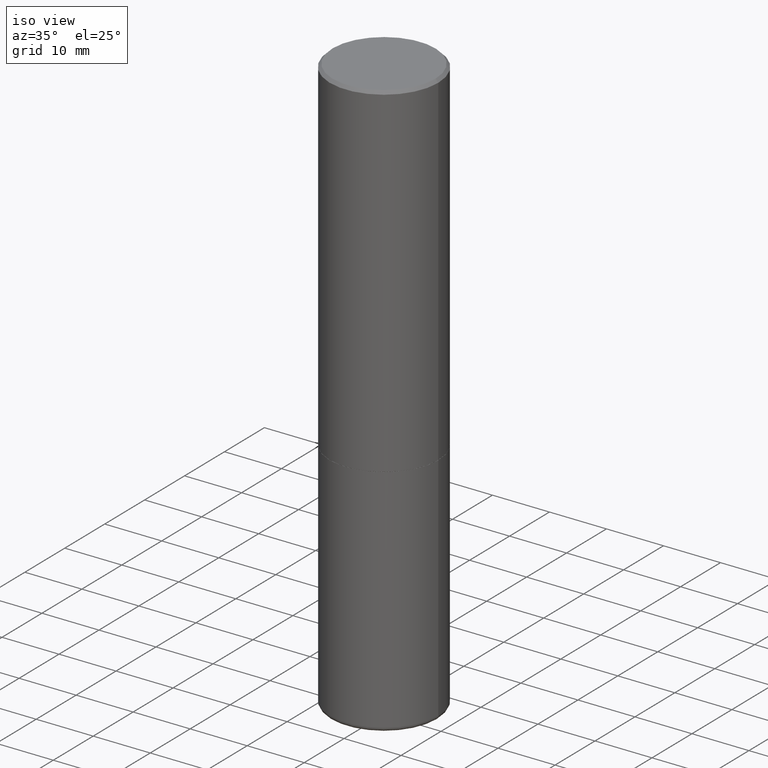
[diagram: clean part render]
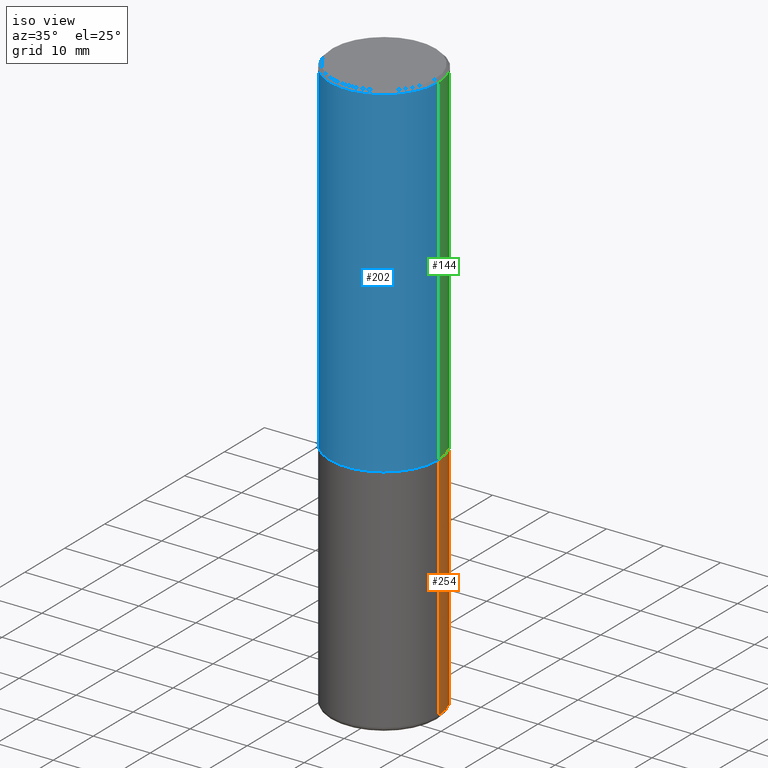
[diagram: same view with three faces highlighted in distinct colors, each labeled with its STEP entity id]
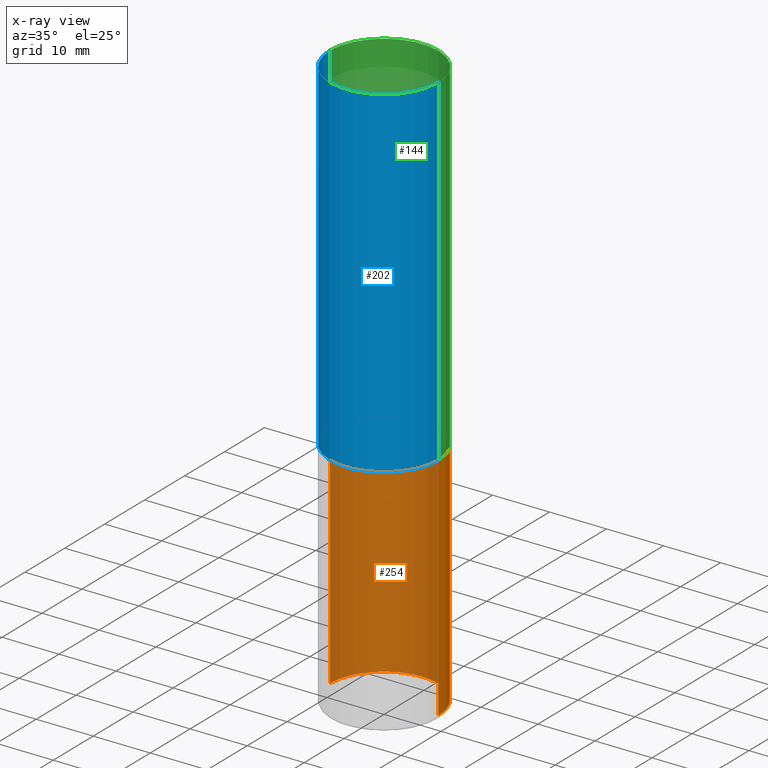
[diagram: x-ray of the same camera — body ghosted, the three highlighted faces saturated]
A machine part, iso view with three faces highlighted in distinct colors.
The next image is the same camera in x-ray (body ghosted, the three faces saturated) — at least one of them is partly hidden behind the body in this view.
Their STEP definitions:

[orange] entity #254 — the highlighted cylindrical surface (partial cylindrical patch) has radius 9.525 mm, axis along (-0, 0, 1).
#13 = EDGE_CURVE ( 'NONE', #386, #225, #66, .T. ) ;
#57 = ORIENTED_EDGE ( 'NONE', *, *, #13, .T. ) ;
#60 = AXIS2_PLACEMENT_3D ( 'NONE', #87, #275, #387 ) ;
#61 = CARTESIAN_POINT ( 'NONE',  ( 0.3749999999999993894, -2.618611004132345678E-15, 1.828566290923473120E-29 ) ) ;
#66 = CIRCLE ( 'NONE', #359, 0.3749999999999993339 ) ;
#68 = CARTESIAN_POINT ( 'NONE',  ( 0.3749999999999995559, -1.091087918388481698E-14, -2.375000000000000000 ) ) ;
#87 = CARTESIAN_POINT ( 'NONE',  ( 5.807988414689699417E-29, -8.292268179752470118E-15, -2.375000000000000000 ) ) ;
#93 = AXIS2_PLACEMENT_3D ( 'NONE', #214, #98, #139 ) ;
#94 = CIRCLE ( 'NONE', #60, 0.3749999999999995559 ) ;
#98 = DIRECTION ( 'NONE',  ( -2.445468806185136597E-29, 3.491481338843145583E-15, 1.000000000000000000 ) ) ;
#100 = VECTOR ( 'NONE', #290, 39.37007874015748143 ) ;
#104 = EDGE_CURVE ( 'NONE', #386, #155, #395, .T. ) ;
#129 = DIRECTION ( 'NONE',  ( -2.445468806185136597E-29, 3.491481338843145583E-15, 1.000000000000000000 ) ) ;
#139 = DIRECTION ( 'NONE',  ( 1.000000000000000000, -6.982962677686266711E-15, 4.876176775795936353E-29 ) ) ;
#145 = CARTESIAN_POINT ( 'NONE',  ( 0.3749999999999993339, -1.647979590768696204E-14, -3.970001142308074993 ) ) ;
#155 = VERTEX_POINT ( 'NONE', #68 ) ;
#166 = VECTOR ( 'NONE', #201, 39.37007874015748143 ) ;
#175 = FACE_OUTER_BOUND ( 'NONE', #193, .T. ) ;
#193 = EDGE_LOOP ( 'NONE', ( #57, #263, #422, #264 ) ) ;
#199 = DIRECTION ( 'NONE',  ( 1.000000000000000000, -6.982962677686269866E-15, 0.000000000000000000 ) ) ;
#201 = DIRECTION ( 'NONE',  ( -2.445468806185136877E-29, 3.491481338843145188E-15, 1.000000000000000000 ) ) ;
#214 = CARTESIAN_POINT ( 'NONE',  ( 0.000000000000000000, 0.000000000000000000, 0.000000000000000000 ) ) ;
#224 = CARTESIAN_POINT ( 'NONE',  ( -0.3749999999999995559, -8.412191282553170896E-15, -2.375000000000000000 ) ) ;
#225 = VERTEX_POINT ( 'NONE', #284 ) ;
#254 = ADVANCED_FACE ( 'NONE', ( #175 ), #447, .T. ) ;
#263 = ORIENTED_EDGE ( 'NONE', *, *, #265, .T. ) ;
#264 = ORIENTED_EDGE ( 'NONE', *, *, #104, .F. ) ;
#265 = EDGE_CURVE ( 'NONE', #225, #304, #405, .T. ) ;
#275 = DIRECTION ( 'NONE',  ( -2.445468806185136597E-29, 3.491481338843145583E-15, 1.000000000000000000 ) ) ;
#284 = CARTESIAN_POINT ( 'NONE',  ( -0.3749999999999993339, -8.412191282553172474E-15, -3.970001142308074993 ) ) ;
#288 = CARTESIAN_POINT ( 'NONE',  ( -0.3749999999999993894, 2.664535259100371358E-15, -1.844600658845586515E-29 ) ) ;
#290 = DIRECTION ( 'NONE',  ( -2.445468806185136877E-29, 3.491481338843145188E-15, 1.000000000000000000 ) ) ;
#304 = VERTEX_POINT ( 'NONE', #224 ) ;
#318 = CARTESIAN_POINT ( 'NONE',  ( 9.708513954033757613E-29, -1.386118490355461518E-14, -3.970001142308074993 ) ) ;
#359 = AXIS2_PLACEMENT_3D ( 'NONE', #318, #129, #199 ) ;
#386 = VERTEX_POINT ( 'NONE', #145 ) ;
#387 = DIRECTION ( 'NONE',  ( 1.000000000000000000, -6.982962677686265133E-15, 0.000000000000000000 ) ) ;
#395 = LINE ( 'NONE', #61, #166 ) ;
#405 = LINE ( 'NONE', #288, #100 ) ;
#422 = ORIENTED_EDGE ( 'NONE', *, *, #486, .F. ) ;
#447 = CYLINDRICAL_SURFACE ( 'NONE', #93, 0.3749999999999993894 ) ;
#486 = EDGE_CURVE ( 'NONE', #155, #304, #94, .T. ) ;

[blue] entity #202 — the highlighted cylindrical surface (partial cylindrical patch) has radius 9.525 mm, axis along (-0, 0, 1).
#1 = DIRECTION ( 'NONE',  ( -2.445468806185136597E-29, 3.491481338843145583E-15, 1.000000000000000000 ) ) ;
#24 = EDGE_LOOP ( 'NONE', ( #95, #207, #433, #218 ) ) ;
#30 = CYLINDRICAL_SURFACE ( 'NONE', #430, 0.3749999999999993894 ) ;
#34 = DIRECTION ( 'NONE',  ( 1.000000000000000000, -6.982962677686265133E-15, 0.000000000000000000 ) ) ;
#35 = CARTESIAN_POINT ( 'NONE',  ( 0.3749999999999995559, -1.090738770254597397E-14, -2.373999999999999666 ) ) ;
#49 = CIRCLE ( 'NONE', #310, 0.3749999999999995559 ) ;
#62 = EDGE_CURVE ( 'NONE', #152, #394, #448, .T. ) ;
#95 = ORIENTED_EDGE ( 'NONE', *, *, #421, .F. ) ;
#101 = VECTOR ( 'NONE', #109, 39.37007874015748143 ) ;
#103 = DIRECTION ( 'NONE',  ( -2.445468806185136597E-29, 3.491481338843145583E-15, 1.000000000000000000 ) ) ;
#109 = DIRECTION ( 'NONE',  ( -2.445468806185136877E-29, 3.491481338843145188E-15, 1.000000000000000000 ) ) ;
#127 = VERTEX_POINT ( 'NONE', #323 ) ;
#142 = LINE ( 'NONE', #181, #101 ) ;
#148 = DIRECTION ( 'NONE',  ( 1.000000000000000000, -6.982962677686267499E-15, 0.000000000000000000 ) ) ;
#152 = VERTEX_POINT ( 'NONE', #35 ) ;
#164 = CARTESIAN_POINT ( 'NONE',  ( 0.3749999999999993894, -2.618611004132345678E-15, 1.828566290923473120E-29 ) ) ;
#179 = VECTOR ( 'NONE', #439, 39.37007874015748143 ) ;
#181 = CARTESIAN_POINT ( 'NONE',  ( -0.3749999999999993894, 2.664535259100371358E-15, -1.844600658845586515E-29 ) ) ;
#186 = DIRECTION ( 'NONE',  ( -2.445468806185136597E-29, 3.491481338843145583E-15, 1.000000000000000000 ) ) ;
#195 = EDGE_CURVE ( 'NONE', #127, #152, #49, .T. ) ;
#198 = CIRCLE ( 'NONE', #245, 0.3749999999999992784 ) ;
#202 = ADVANCED_FACE ( 'NONE', ( #407 ), #30, .T. ) ;
#207 = ORIENTED_EDGE ( 'NONE', *, *, #195, .T. ) ;
#218 = ORIENTED_EDGE ( 'NONE', *, *, #350, .F. ) ;
#221 = CARTESIAN_POINT ( 'NONE',  ( 0.3749999999999992784, -2.642516375941182506E-15, -0.02000000000000018083 ) ) ;
#245 = AXIS2_PLACEMENT_3D ( 'NONE', #412, #186, #148 ) ;
#258 = VERTEX_POINT ( 'NONE', #331 ) ;
#310 = AXIS2_PLACEMENT_3D ( 'NONE', #491, #1, #34 ) ;
#323 = CARTESIAN_POINT ( 'NONE',  ( -0.3749999999999995559, -1.514767903494871085E-15, -2.373999999999999666 ) ) ;
#329 = CARTESIAN_POINT ( 'NONE',  ( 0.000000000000000000, 0.000000000000000000, 0.000000000000000000 ) ) ;
#331 = CARTESIAN_POINT ( 'NONE',  ( -0.3749999999999992784, 2.548781377355481985E-15, -0.02000000000000018083 ) ) ;
#334 = DIRECTION ( 'NONE',  ( 1.000000000000000000, -6.982962677686266711E-15, 4.876176775795936353E-29 ) ) ;
#350 = EDGE_CURVE ( 'NONE', #258, #394, #198, .T. ) ;
#394 = VERTEX_POINT ( 'NONE', #221 ) ;
#407 = FACE_OUTER_BOUND ( 'NONE', #24, .T. ) ;
#412 = CARTESIAN_POINT ( 'NONE',  ( 4.890937612370316949E-31, -6.982962677686354471E-17, -0.02000000000000018083 ) ) ;
#421 = EDGE_CURVE ( 'NONE', #127, #258, #142, .T. ) ;
#430 = AXIS2_PLACEMENT_3D ( 'NONE', #329, #103, #334 ) ;
#433 = ORIENTED_EDGE ( 'NONE', *, *, #62, .T. ) ;
#439 = DIRECTION ( 'NONE',  ( -2.445468806185136877E-29, 3.491481338843145188E-15, 1.000000000000000000 ) ) ;
#448 = LINE ( 'NONE', #164, #179 ) ;
#491 = CARTESIAN_POINT ( 'NONE',  ( 5.805542945883513814E-29, -8.288776698413627111E-15, -2.373999999999999666 ) ) ;

[green] entity #144 — the highlighted cylindrical surface (partial cylindrical patch) has radius 9.525 mm, axis along (-0, 0, 1).
#20 = EDGE_LOOP ( 'NONE', ( #435, #322, #305, #482 ) ) ;
#35 = CARTESIAN_POINT ( 'NONE',  ( 0.3749999999999995559, -1.090738770254597397E-14, -2.373999999999999666 ) ) ;
#37 = DIRECTION ( 'NONE',  ( 1.000000000000000000, -6.982962677686266711E-15, 4.876176775795936353E-29 ) ) ;
#38 = EDGE_CURVE ( 'NONE', #394, #258, #489, .T. ) ;
#62 = EDGE_CURVE ( 'NONE', #152, #394, #448, .T. ) ;
#79 = AXIS2_PLACEMENT_3D ( 'NONE', #463, #346, #82 ) ;
#82 = DIRECTION ( 'NONE',  ( 1.000000000000000000, -6.982962677686265133E-15, 0.000000000000000000 ) ) ;
#88 = DIRECTION ( 'NONE',  ( -2.445468806185136597E-29, 3.491481338843145583E-15, 1.000000000000000000 ) ) ;
#97 = CARTESIAN_POINT ( 'NONE',  ( 4.890937612370316949E-31, -6.982962677686354471E-17, -0.02000000000000018083 ) ) ;
#99 = FACE_OUTER_BOUND ( 'NONE', #20, .T. ) ;
#101 = VECTOR ( 'NONE', #109, 39.37007874015748143 ) ;
#109 = DIRECTION ( 'NONE',  ( -2.445468806185136877E-29, 3.491481338843145188E-15, 1.000000000000000000 ) ) ;
#127 = VERTEX_POINT ( 'NONE', #323 ) ;
#128 = DIRECTION ( 'NONE',  ( -2.445468806185136597E-29, 3.491481338843145583E-15, 1.000000000000000000 ) ) ;
#142 = LINE ( 'NONE', #181, #101 ) ;
#144 = ADVANCED_FACE ( 'NONE', ( #99 ), #244, .T. ) ;
#152 = VERTEX_POINT ( 'NONE', #35 ) ;
#164 = CARTESIAN_POINT ( 'NONE',  ( 0.3749999999999993894, -2.618611004132345678E-15, 1.828566290923473120E-29 ) ) ;
#167 = DIRECTION ( 'NONE',  ( 1.000000000000000000, -6.982962677686267499E-15, 0.000000000000000000 ) ) ;
#179 = VECTOR ( 'NONE', #439, 39.37007874015748143 ) ;
#181 = CARTESIAN_POINT ( 'NONE',  ( -0.3749999999999993894, 2.664535259100371358E-15, -1.844600658845586515E-29 ) ) ;
#221 = CARTESIAN_POINT ( 'NONE',  ( 0.3749999999999992784, -2.642516375941182506E-15, -0.02000000000000018083 ) ) ;
#244 = CYLINDRICAL_SURFACE ( 'NONE', #392, 0.3749999999999993894 ) ;
#258 = VERTEX_POINT ( 'NONE', #331 ) ;
#276 = AXIS2_PLACEMENT_3D ( 'NONE', #97, #128, #167 ) ;
#305 = ORIENTED_EDGE ( 'NONE', *, *, #38, .F. ) ;
#322 = ORIENTED_EDGE ( 'NONE', *, *, #421, .T. ) ;
#323 = CARTESIAN_POINT ( 'NONE',  ( -0.3749999999999995559, -1.514767903494871085E-15, -2.373999999999999666 ) ) ;
#331 = CARTESIAN_POINT ( 'NONE',  ( -0.3749999999999992784, 2.548781377355481985E-15, -0.02000000000000018083 ) ) ;
#346 = DIRECTION ( 'NONE',  ( -2.445468806185136597E-29, 3.491481338843145583E-15, 1.000000000000000000 ) ) ;
#363 = EDGE_CURVE ( 'NONE', #152, #127, #442, .T. ) ;
#392 = AXIS2_PLACEMENT_3D ( 'NONE', #432, #88, #37 ) ;
#394 = VERTEX_POINT ( 'NONE', #221 ) ;
#421 = EDGE_CURVE ( 'NONE', #127, #258, #142, .T. ) ;
#432 = CARTESIAN_POINT ( 'NONE',  ( 0.000000000000000000, 0.000000000000000000, 0.000000000000000000 ) ) ;
#435 = ORIENTED_EDGE ( 'NONE', *, *, #363, .T. ) ;
#439 = DIRECTION ( 'NONE',  ( -2.445468806185136877E-29, 3.491481338843145188E-15, 1.000000000000000000 ) ) ;
#442 = CIRCLE ( 'NONE', #79, 0.3749999999999995559 ) ;
#448 = LINE ( 'NONE', #164, #179 ) ;
#463 = CARTESIAN_POINT ( 'NONE',  ( 5.805542945883513814E-29, -8.288776698413627111E-15, -2.373999999999999666 ) ) ;
#482 = ORIENTED_EDGE ( 'NONE', *, *, #62, .F. ) ;
#489 = CIRCLE ( 'NONE', #276, 0.3749999999999992784 ) ;